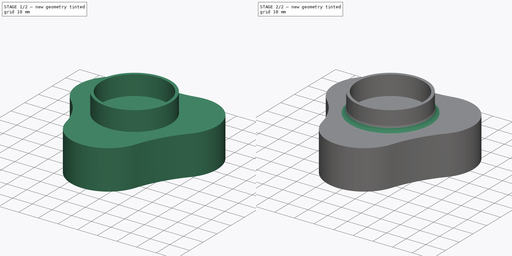
[diagram: build sequence overview — one tinted view per stage of 2, left to right]
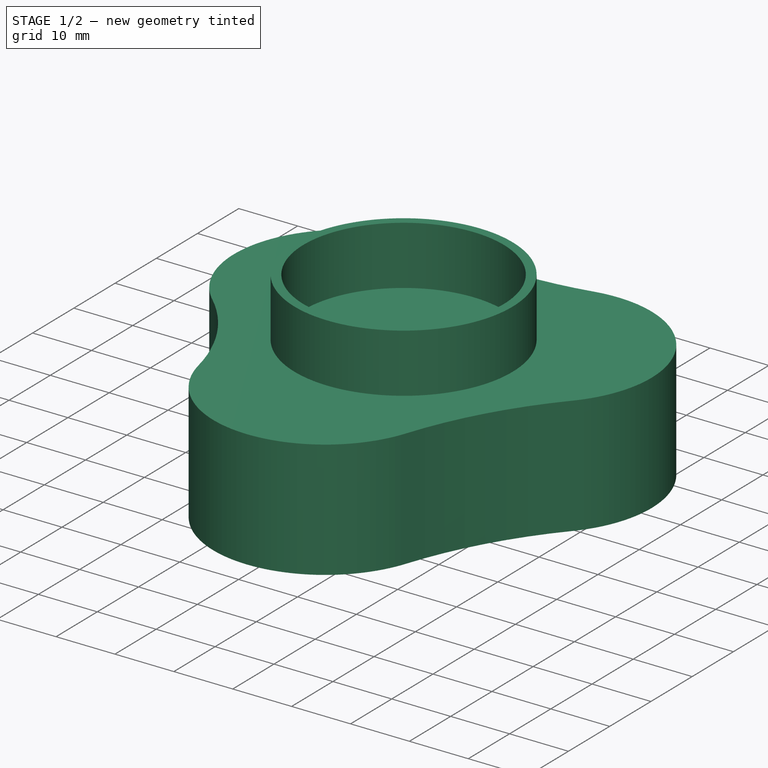
[diagram: stage 1 of 2 — iso view after this stage's code; geometry added in this stage tinted green]
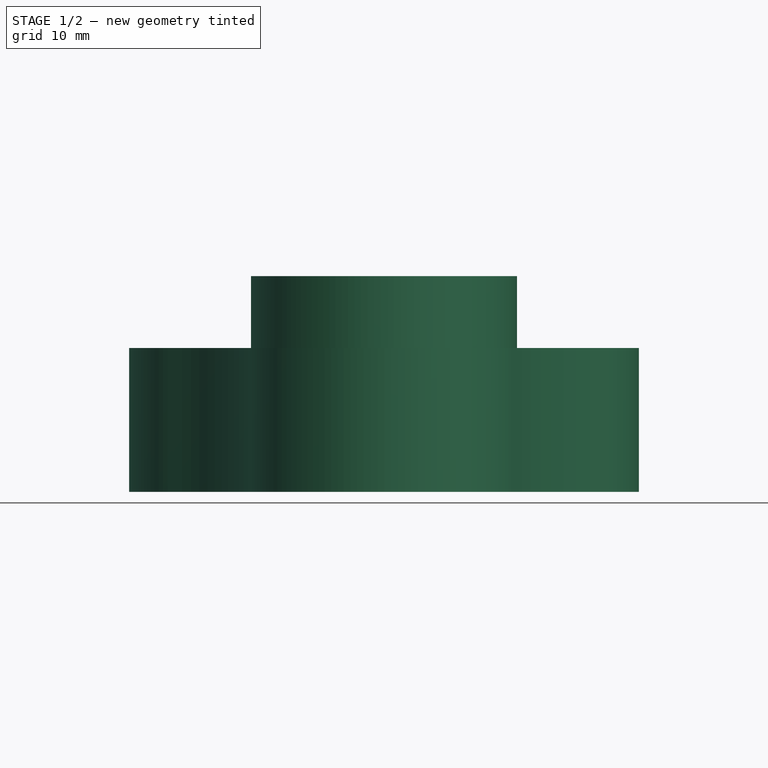
[diagram: stage 1 of 2 — front view after this stage's code; geometry added in this stage tinted green]
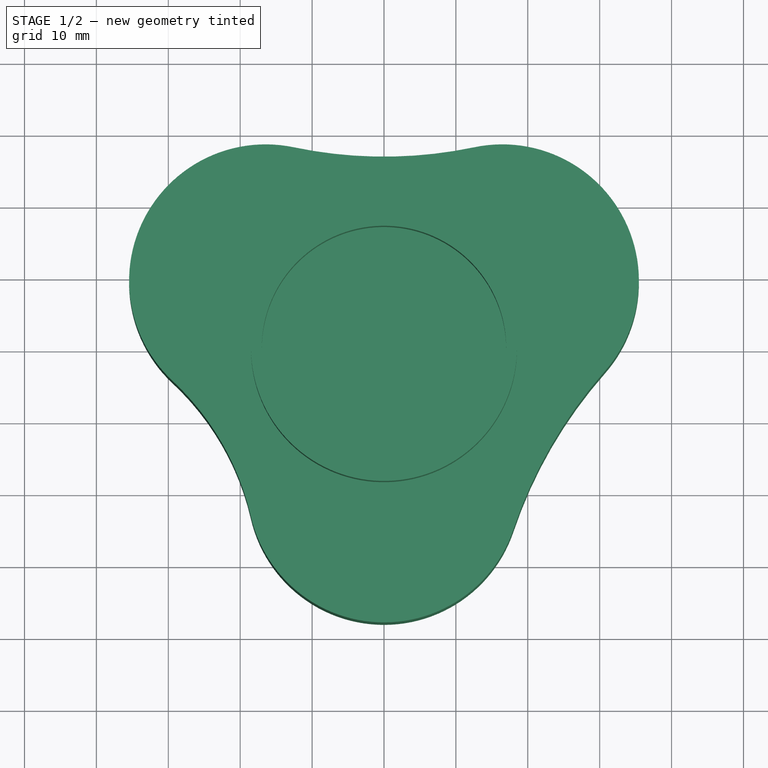
[diagram: stage 1 of 2 — top view after this stage's code; geometry added in this stage tinted green]
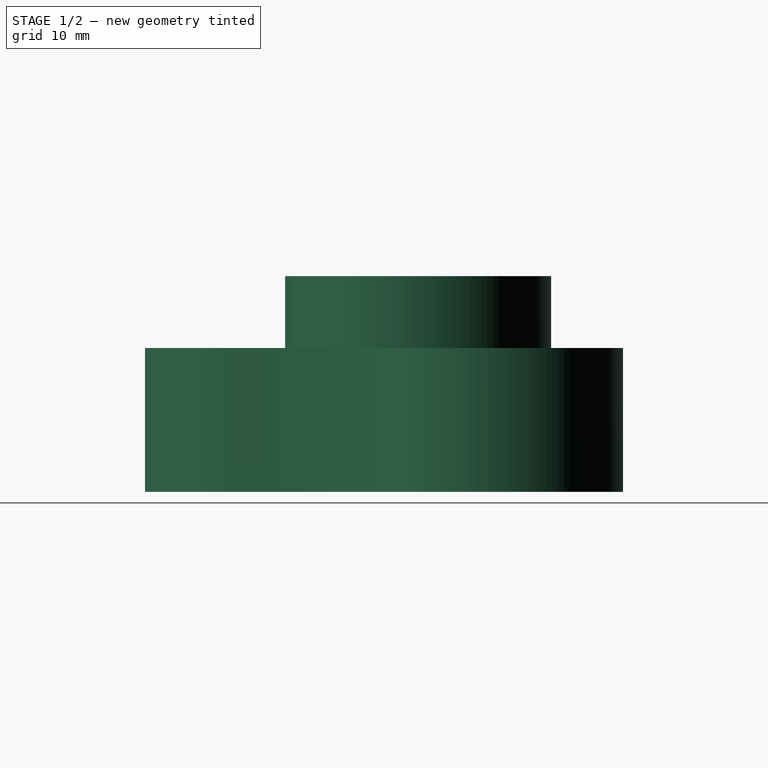
[diagram: stage 1 of 2 — right view after this stage's code; geometry added in this stage tinted green]
FCSTD DOCUMENT  (FreeCAD 1.1R20260325 (Git shallow))
Label: Datum001
License: All rights reserved
LicenseURL: https://en.wikipedia.org/wiki/All_rights_reserved
objects: Sketcher::SketchObject×2, PartDesign::Pad×2, App::Point×1, PartDesign::Fillet×1, PartDesign::Body×1
note: 14 computed .brp shape members not serialized (recipe doc carries the construction recipe); baked Part::Feature solids carry a one-line shape summary decoded from their .brp

FEATURE [App::Point] Origin001
  Role = Origin
FEATURE [Sketcher::SketchObject] Sketch
  ArcFitTolerance = 1e-06
  AttachmentSupport = -> [Origin]
  ExternalTypes = [0]
  FullyConstrained = false
  MakeInternals = false
  MapMode = 5
  _ExternalGeoVersion = 1
  sketch-geometry (12):
    g0: Circle [constr] CenterX=0 CenterY=0 CenterZ=0 NormalX=0 NormalY=0 NormalZ=1 AngleXU=0 Radius=38
    g1: LineSegment [constr] StartX=0 StartY=0 StartZ=0 EndX=32.909 EndY=19 EndZ=0
    g2: LineSegment [constr] StartX=0 StartY=0 StartZ=0 EndX=-32.909 EndY=19 EndZ=0
    g3: LineSegment [constr] StartX=0 StartY=0 StartZ=0 EndX=0 EndY=-38 EndZ=0
    g4: ArcOfCircle CenterX=16.4545 CenterY=9.5 CenterZ=0 NormalX=0 NormalY=0 NormalZ=1 AngleXU=0 Radius=19 StartAngle=5.56073 EndAngle=8.06093
    g5: ArcOfCircle CenterX=-16.4545 CenterY=9.5 CenterZ=0 NormalX=0 NormalY=0 NormalZ=1 AngleXU=0 Radius=19 StartAngle=1.36385 EndAngle=3.96171
    g6: LineSegment [constr] StartX=0 StartY=0 StartZ=0 EndX=-32.909 EndY=-19 EndZ=0
    g7: LineSegment [constr] StartX=0 StartY=0 StartZ=0 EndX=32.909 EndY=-19 EndZ=0
    g8: ArcOfCircle CenterX=8.30816e-10 CenterY=87.8721 CenterZ=0 NormalX=0 NormalY=0 NormalZ=1 AngleXU=0 Radius=61.0808 StartAngle=4.50544 EndAngle=4.91934
    g9: ArcOfCircle CenterX=78.9395 CenterY=-45.5757 CenterZ=0 NormalX=0 NormalY=0 NormalZ=1 AngleXU=0 Radius=64.2929 StartAngle=2.41914 EndAngle=2.81685
    g10: ArcOfCircle CenterX=-54.8688 CenterY=-31.6785 CenterZ=0 NormalX=0 NormalY=0 NormalZ=1 AngleXU=0 Radius=37.3145 StartAngle=0.227084 EndAngle=0.820114
    g11: ArcOfCircle CenterX=0 CenterY=-19 CenterZ=0 NormalX=0 NormalY=0 NormalZ=1 AngleXU=0 Radius=19 StartAngle=3.36868 EndAngle=5.95844
  constraints (26):
    c: Diameter(g0) = 76
    c: Coincident(g0,g-1)
    c: Coincident(g1,g0)
    c: PointOnObject(g1,g0)
    c: Coincident(g2,g0)
    c: PointOnObject(g2,g0)
    c: Coincident(g3,g0)
    c: PointOnObject(g3,g0)
    c: Vertical(g3)
    c: Angle(g1,g2) = 2.0944
    c: Angle(g2,g3) = 2.0944
    c: Symmetric(g1,g1,g4)
    c: Symmetric(g2,g2,g5)
    c: Symmetric(g3,g3,g11)
    c: Coincident(g6,g0)
    c: PointOnObject(g6,g0)
    c: Angle(g-1,g6) = 0.523599
    c: Coincident(g7,g0)
    c: PointOnObject(g7,g0)
    c: Angle(g7,g-1) = 0.523599
    c: Tangent(g8,g5) = 1.5708
    c: Tangent(g8,g4) = 1.5708
    c: Tangent(g9,g4) = 1.5708
    c: Tangent(g9,g11) = 1.5708
    c: Tangent(g10,g5) = 1.5708
    c: Tangent(g10,g11) = 1.5708
FEATURE [PartDesign::Pad] Pad
  Direction = (0,0,1)
  Length = 20
  Length2 = 10
  Profile = -> Sketch
  ReferenceAxis = -> Sketch [N_Axis]
  Refine = true
  SideType = 0
  Suppressed = false
  Type = 0
  Type2 = 0
FEATURE [Sketcher::SketchObject] Sketch001
  ArcFitTolerance = 1e-06
  AttachmentSupport = -> [Pad]
  ExternalTypes = [0]
  FullyConstrained = true
  MakeInternals = false
  MapMode = 5
  Placement = pos=(0,0,20) rot=(0,0,1;0rad)
  _ExternalGeoVersion = 1
  sketch-geometry (2):
    g0: Circle CenterX=0 CenterY=0 CenterZ=0 NormalX=0 NormalY=0 NormalZ=1 AngleXU=0 Radius=17
    g1: Circle CenterX=0 CenterY=0 CenterZ=0 NormalX=0 NormalY=0 NormalZ=1 AngleXU=0 Radius=18.5
  constraints (4):
    c: Diameter(g0) = 34
    c: Coincident(g0,g-1)
    c: Diameter(g1) = 37
    c: Coincident(g1,g0)
FEATURE [PartDesign::Pad] Pad001
  BaseFeature = -> Pad
  Direction = (0,0,1)
  Length = 10
  Length2 = 10
  Profile = -> Sketch001
  ReferenceAxis = -> Sketch001 [N_Axis]
  Refine = true
  SideType = 0
  Suppressed = false
  Type = 0
  Type2 = 0
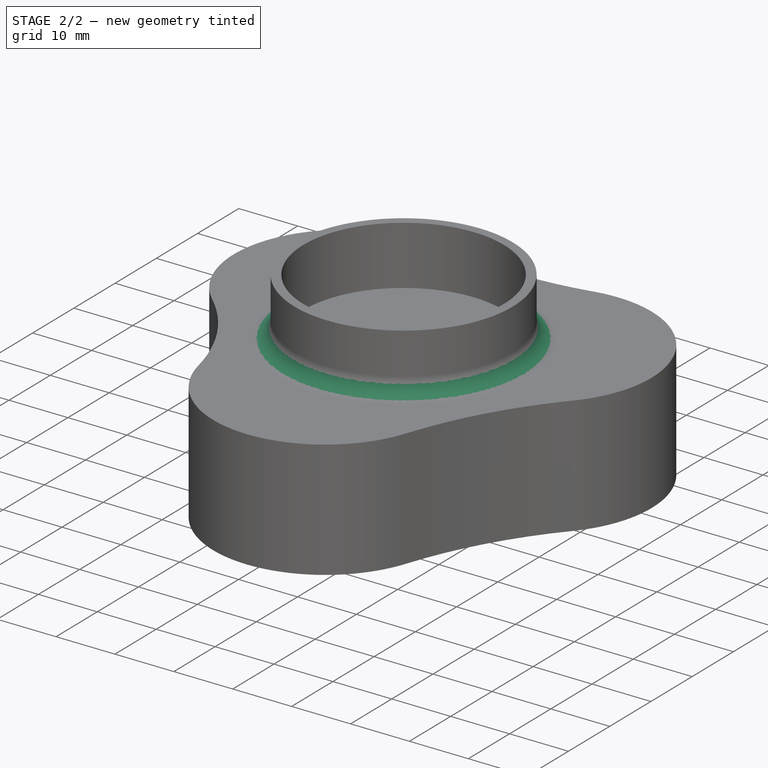
[diagram: stage 2 of 2 — iso view after this stage's code; geometry added in this stage tinted green]
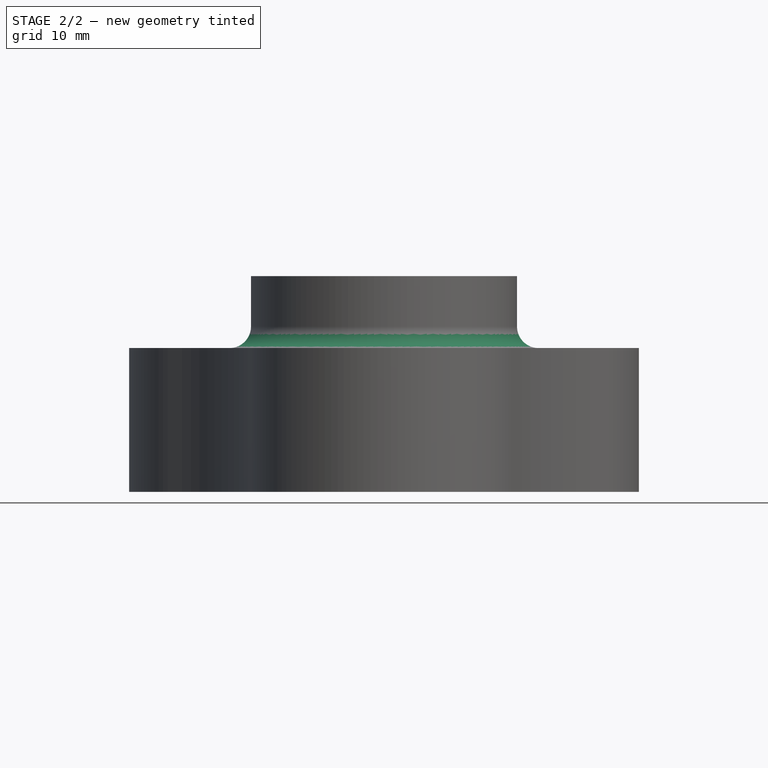
[diagram: stage 2 of 2 — front view after this stage's code; geometry added in this stage tinted green]
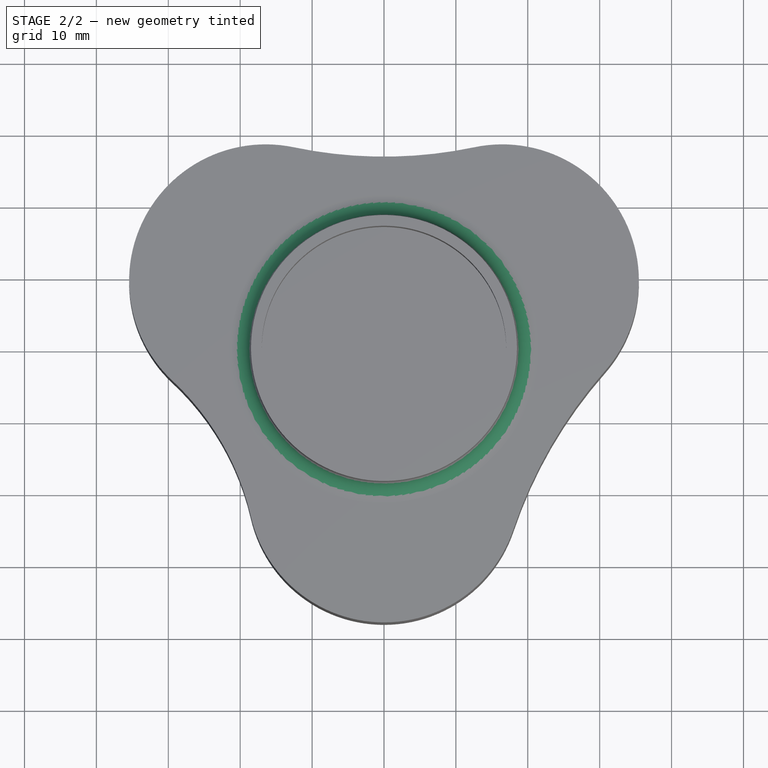
[diagram: stage 2 of 2 — top view after this stage's code; geometry added in this stage tinted green]
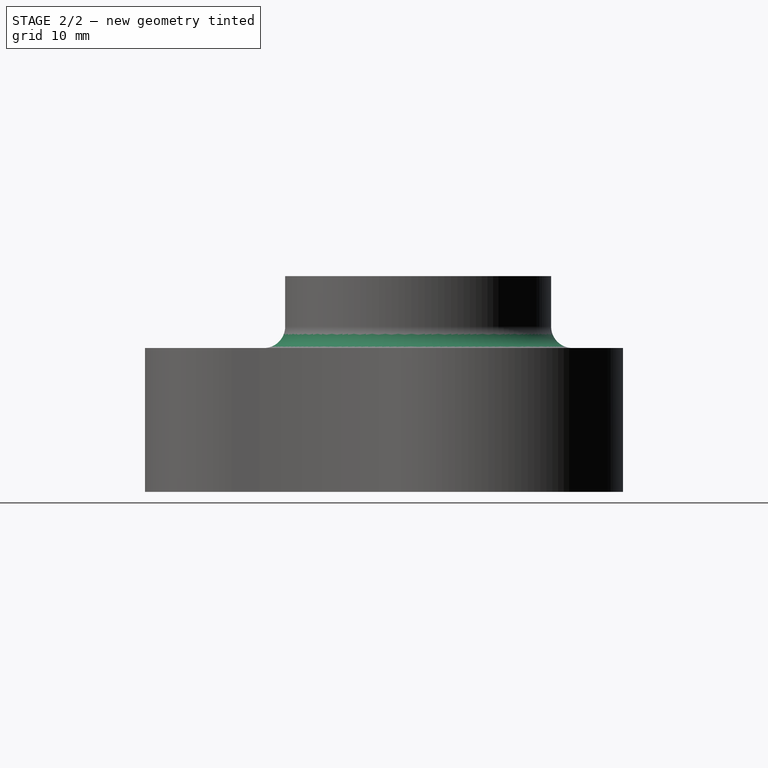
[diagram: stage 2 of 2 — right view after this stage's code; geometry added in this stage tinted green]
FEATURE [PartDesign::Fillet] Fillet
  Base = -> Pad001 [Edge17]
  BaseFeature = -> Pad001
  Radius = 3
  Refine = true
  SupportTransform = false
  Suppressed = false
  UseAllEdges = false
FEATURE [PartDesign::Body] Body
  AllowCompound = true
  Group = -> [Sketch,Pad,Sketch001,Pad001,Fillet]
  Origin = -> Origin
  Tip = -> Fillet
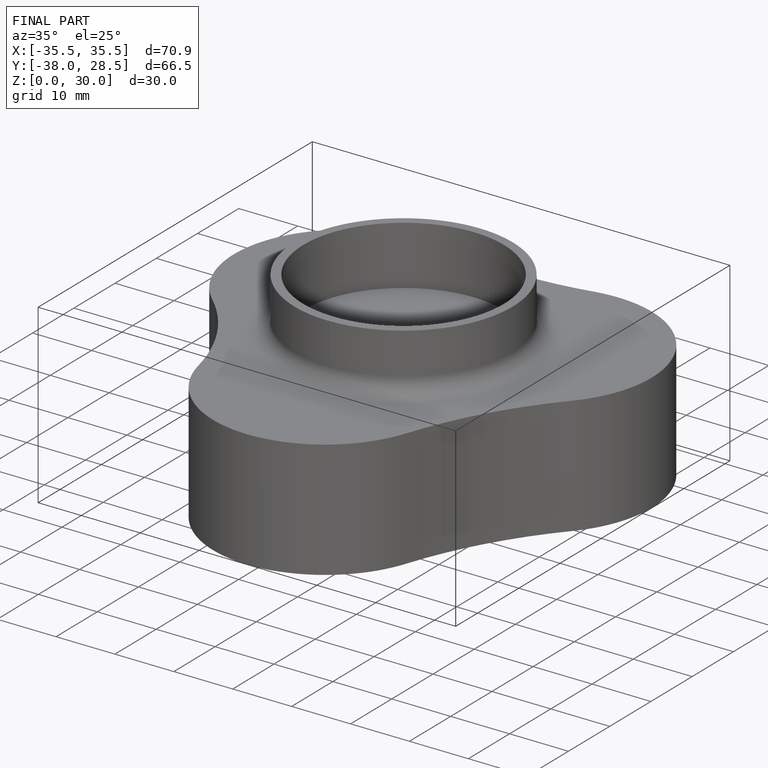
[diagram: finished part — iso view with bounding-box wireframe]
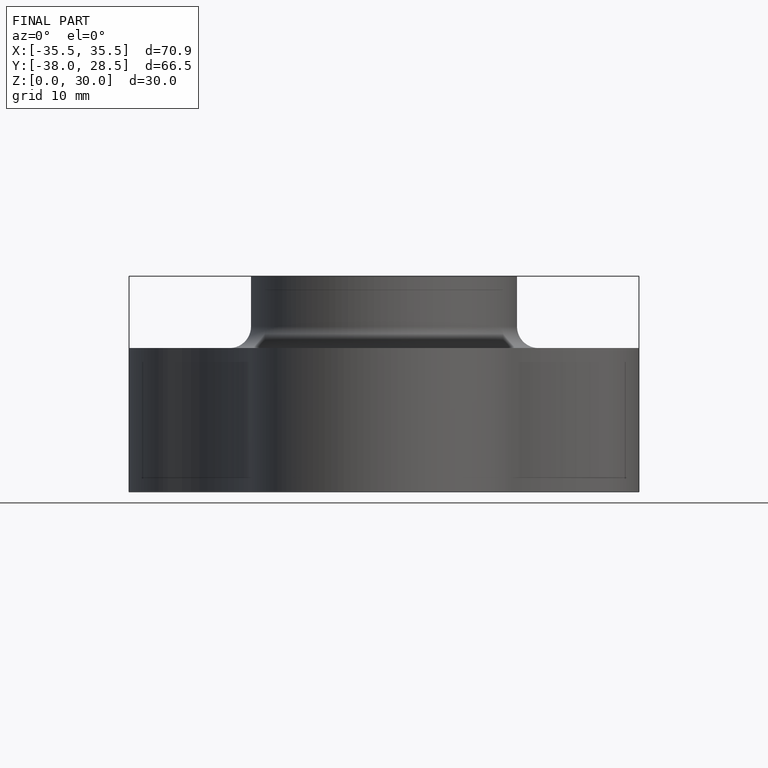
[diagram: finished part — front view with bounding-box wireframe]
